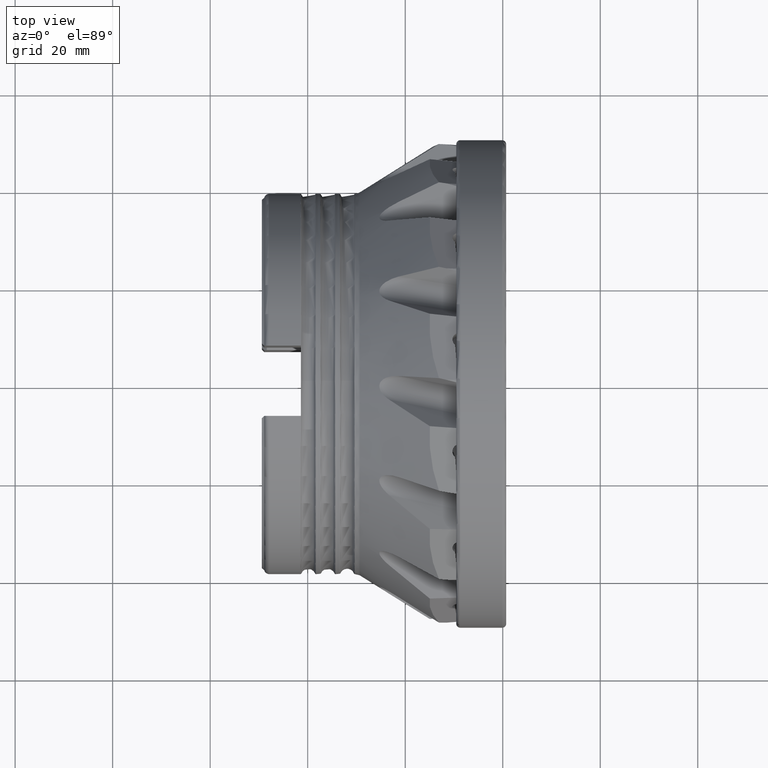
[diagram: clean part render]
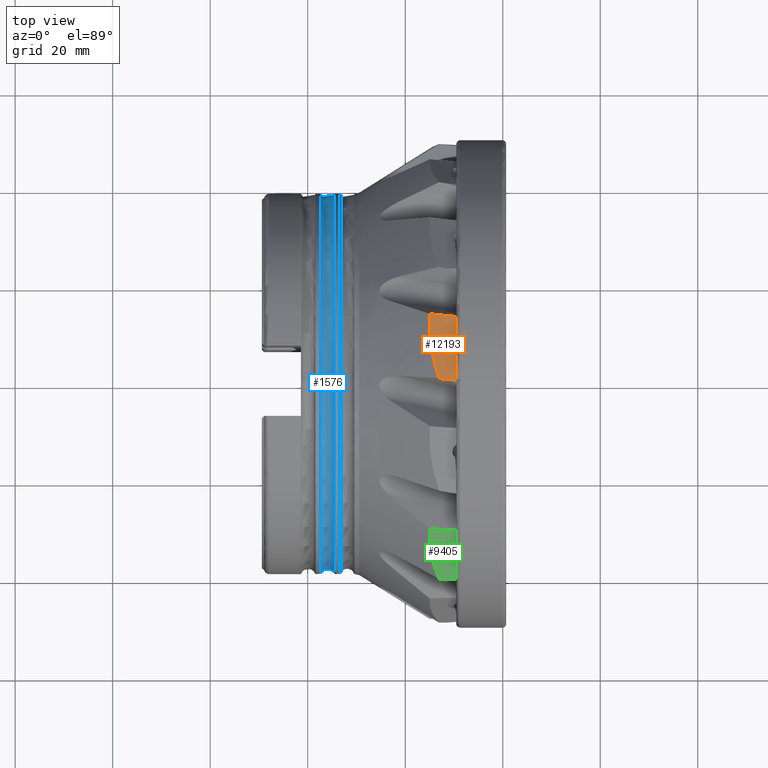
[diagram: same view with three faces highlighted in distinct colors, each labeled with its STEP entity id]
A machine part, top view with three faces highlighted in distinct colors.
Their STEP definitions:

[orange] entity #12193 — the highlighted planar face has unit normal (-0.075, -0.2386, -0.9682).
#284 = CARTESIAN_POINT ( 'NONE',  ( -9.493861966332499200, 9.565074916318346600, 46.89661093486189700 ) ) ;
#366 = LINE ( 'NONE', #6160, #1443 ) ;
#410 = EDGE_CURVE ( 'NONE', #670, #3139, #5415, .T. ) ;
#546 = CARTESIAN_POINT ( 'NONE',  ( -8.824743376138336300, 8.250470291007802700, 47.16881488664934400 ) ) ;
#670 = VERTEX_POINT ( 'NONE', #11429 ) ;
#878 = CARTESIAN_POINT ( 'NONE',  ( -14.84313381388667900, 7.996017641794465700, 47.69759997523081600 ) ) ;
#911 = EDGE_CURVE ( 'NONE', #3139, #5652, #11767, .T. ) ;
#932 = ORIENTED_EDGE ( 'NONE', *, *, #8702, .T. ) ;
#1191 = DIRECTION ( 'NONE',  ( 0.9755127854024282500, -0.2188799881042607400, -0.02159528476021882100 ) ) ;
#1443 = VECTOR ( 'NONE', #1191, 999.9999999999998900 ) ;
#1535 = CARTESIAN_POINT ( 'NONE',  ( -9.521634869937338800, 1.578536614008951800, 48.86726658069592600 ) ) ;
#1566 = AXIS2_PLACEMENT_3D ( 'NONE', #2686, #11645, #5686 ) ;
#1570 = DIRECTION ( 'NONE',  ( 0.0000000000000000000, 0.9709418174260539000, -0.2393156642875499700 ) ) ;
#1659 = CARTESIAN_POINT ( 'NONE',  ( -11.56605157200817400, -3.382318612024606100E-013, 49.41466189609929000 ) ) ;
#1782 = ORIENTED_EDGE ( 'NONE', *, *, #911, .F. ) ;
#1880 = CARTESIAN_POINT ( 'NONE',  ( -13.81637240197975700, 2.492366759669711200, 48.97461499944779500 ) ) ;
#2238 = CARTESIAN_POINT ( 'NONE',  ( -9.529555263469744000, 0.3690522359348623000, 49.16599106609749000 ) ) ;
#2260 = CARTESIAN_POINT ( 'NONE',  ( -9.527000476006922000, -3.366713401751077900E-013, 49.25675642812401400 ) ) ;
#2686 = CARTESIAN_POINT ( 'NONE',  ( 3.522238160756996800, 11.21056697688779900, 45.48305814966299500 ) ) ;
#2861 = CARTESIAN_POINT ( 'NONE',  ( -14.99053346857570700, 13.05510449688492400, 46.46206178522295700 ) ) ;
#3139 = VERTEX_POINT ( 'NONE', #7749 ) ;
#3342 = VECTOR ( 'NONE', #11103, 1000.000000000000000 ) ;
#3385 = AXIS2_PLACEMENT_3D ( 'NONE', #546, #7518, #1570 ) ;
#3455 = ORIENTED_EDGE ( 'NONE', *, *, #8497, .T. ) ;
#3809 = CARTESIAN_POINT ( 'NONE',  ( -9.492439345661626500, 11.88156660256816200, 46.32553684561631300 ) ) ;
#3965 = LINE ( 'NONE', #5155, #3342 ) ;
#4020 = ORIENTED_EDGE ( 'NONE', *, *, #8549, .T. ) ;
#4185 = B_SPLINE_CURVE_WITH_KNOTS ( 'NONE', 3,
 ( #10741, #3809, #11756, #5798 ),
 .UNSPECIFIED., .F., .F.,
 ( 4, 4 ),
 ( 0.0005913503118668593000, 0.004170112217713586000 ),
 .UNSPECIFIED. ) ;
#4262 = EDGE_CURVE ( 'NONE', #11192, #9511, #4185, .T. ) ;
#4563 = VERTEX_POINT ( 'NONE', #10727 ) ;
#4616 = CARTESIAN_POINT ( 'NONE',  ( 3.734943233848599900, -3.295974604355933500E-013, 48.22974271970189600 ) ) ;
#4689 = PLANE ( 'NONE',  #1566 ) ;
#4882 = VECTOR ( 'NONE', #5814, 1000.000000000000100 ) ;
#4896 = LINE ( 'NONE', #11769, #4882 ) ;
#4947 = EDGE_LOOP ( 'NONE', ( #10029, #11469, #4020, #932, #12090, #1782, #7156, #3455, #7442 ) ) ;
#5155 = CARTESIAN_POINT ( 'NONE',  ( 3.564277126467818100, 11.66728847136491800, 45.36723088634331400 ) ) ;
#5253 = CARTESIAN_POINT ( 'NONE',  ( -9.527000476006922000, -3.366713401751077900E-013, 49.25675642812401400 ) ) ;
#5271 = CARTESIAN_POINT ( 'NONE',  ( -13.08113840792328400, 0.3399465323100677700, 49.44820192975917200 ) ) ;
#5297 = B_SPLINE_CURVE_WITH_KNOTS ( 'NONE', 3,
 ( #10808, #2861, #11804, #5856, #12755, #6843, #878, #7848, #1880, #8825 ),
 .UNSPECIFIED., .F., .F.,
 ( 4, 2, 2, 2, 4 ),
 ( 0.009805191087140950300, 0.01152719253080929600, 0.01324919397447764000, 0.01669319686181433900, 0.02358120263648773300 ),
 .UNSPECIFIED. ) ;
#5415 = B_SPLINE_CURVE_WITH_KNOTS ( 'NONE', 3,
 ( #7649, #11661, #1535, #7525 ),
 .UNSPECIFIED., .F., .F.,
 ( 4, 4 ),
 ( 0.009904539909441208500, 0.01364207444920156500 ),
 .UNSPECIFIED. ) ;
#5607 = DIRECTION ( 'NONE',  ( 0.9970148915944125900, 5.318046581967230700E-016, -0.07720949383969394300 ) ) ;
#5652 = VERTEX_POINT ( 'NONE', #2260 ) ;
#5662 = VERTEX_POINT ( 'NONE', #5271 ) ;
#5686 = DIRECTION ( 'NONE',  ( 0.9971851335251157300, -0.01794358381787752900, -0.07279998129304639200 ) ) ;
#5769 = EDGE_CURVE ( 'NONE', #7956, #5652, #12791, .T. ) ;
#5798 = CARTESIAN_POINT ( 'NONE',  ( -9.493861966332499200, 9.565074916318346600, 46.89661093486189700 ) ) ;
#5814 = DIRECTION ( 'NONE',  ( -0.08711846429042967300, 0.9687969761648263000, -0.2320404967964991300 ) ) ;
#5856 = CARTESIAN_POINT ( 'NONE',  ( -15.02604108072771400, 11.36528276627376700, 46.88131516730182800 ) ) ;
#6160 = CARTESIAN_POINT ( 'NONE',  ( 0.4814873126665858400, -2.703157977243459100, 49.14796110368779800 ) ) ;
#6685 = CIRCLE ( 'NONE', #3385, 1.500000000000000900 ) ;
#6843 = CARTESIAN_POINT ( 'NONE',  ( -14.94848232178144100, 9.111859537550991200, 47.43072790753981100 ) ) ;
#7031 = VERTEX_POINT ( 'NONE', #10743 ) ;
#7156 = ORIENTED_EDGE ( 'NONE', *, *, #410, .F. ) ;
#7442 = ORIENTED_EDGE ( 'NONE', *, *, #10054, .T. ) ;
#7518 = DIRECTION ( 'NONE',  ( -0.07497872682632790400, -0.2386420226472339700, -0.9682087458551178500 ) ) ;
#7525 = CARTESIAN_POINT ( 'NONE',  ( -9.529555263469744000, 0.3690522359348623000, 49.16599106609749000 ) ) ;
#7649 = CARTESIAN_POINT ( 'NONE',  ( -9.509537082797226800, 3.997582196343370900, 48.27008853433294200 ) ) ;
#7709 = EDGE_CURVE ( 'NONE', #11192, #7031, #3965, .T. ) ;
#7749 = CARTESIAN_POINT ( 'NONE',  ( -9.529555263469744000, 0.3690522359348623000, 49.16599106609749000 ) ) ;
#7848 = CARTESIAN_POINT ( 'NONE',  ( -14.36043400706242900, 4.673675331503849500, 48.47910321524848600 ) ) ;
#7956 = VERTEX_POINT ( 'NONE', #1659 ) ;
#8497 = EDGE_CURVE ( 'NONE', #670, #4563, #4896, .T. ) ;
#8549 = EDGE_CURVE ( 'NONE', #7031, #5662, #5297, .T. ) ;
#8702 = EDGE_CURVE ( 'NONE', #5662, #7956, #366, .T. ) ;
#8825 = CARTESIAN_POINT ( 'NONE',  ( -13.08113840792328400, 0.3399465323100677700, 49.44820192975917200 ) ) ;
#9227 = CARTESIAN_POINT ( 'NONE',  ( -9.529554695824892000, 0.1231623573212059800, 49.22659743396058500 ) ) ;
#9511 = VERTEX_POINT ( 'NONE', #284 ) ;
#10029 = ORIENTED_EDGE ( 'NONE', *, *, #4262, .F. ) ;
#10054 = EDGE_CURVE ( 'NONE', #4563, #9511, #6685, .T. ) ;
#10727 = CARTESIAN_POINT ( 'NONE',  ( -9.793776456669011300, 7.158453409545151300, 47.51301543783691300 ) ) ;
#10741 = CARTESIAN_POINT ( 'NONE',  ( -9.493561608285721900, 13.03985008032317700, 46.04013251799525400 ) ) ;
#10743 = CARTESIAN_POINT ( 'NONE',  ( -14.95412993031776100, 13.61383223726059400, 46.32152865163433100 ) ) ;
#10808 = CARTESIAN_POINT ( 'NONE',  ( -14.95412993031776100, 13.61383223726059400, 46.32152865163433100 ) ) ;
#10976 = CARTESIAN_POINT ( 'NONE',  ( -9.493561608285721900, 13.03985008032317700, 46.04013251799525400 ) ) ;
#11103 = DIRECTION ( 'NONE',  ( -0.9932173659157969000, 0.1044010462603099000, 0.05118286415431035800 ) ) ;
#11189 = CARTESIAN_POINT ( 'NONE',  ( -9.530359928307911200, 0.2461758223624449200, 49.19633969571010100 ) ) ;
#11192 = VERTEX_POINT ( 'NONE', #10976 ) ;
#11429 = CARTESIAN_POINT ( 'NONE',  ( -9.509537082797226800, 3.997582196343370900, 48.27008853433294200 ) ) ;
#11469 = ORIENTED_EDGE ( 'NONE', *, *, #7709, .T. ) ;
#11645 = DIRECTION ( 'NONE',  ( -0.07497872682632789100, -0.2386420226472339700, -0.9682087458551177400 ) ) ;
#11661 = CARTESIAN_POINT ( 'NONE',  ( -9.514943241256313300, 2.788046212846928100, 48.56863103529867900 ) ) ;
#11756 = CARTESIAN_POINT ( 'NONE',  ( -9.492539752634119300, 10.72330822047011100, 46.61102967205719200 ) ) ;
#11767 = B_SPLINE_CURVE_WITH_KNOTS ( 'NONE', 3,
 ( #2238, #11189, #9227, #5253 ),
 .UNSPECIFIED., .F., .F.,
 ( 4, 4 ),
 ( 0.003973035490304902300, 0.004359295373884256000 ),
 .UNSPECIFIED. ) ;
#11769 = CARTESIAN_POINT ( 'NONE',  ( -9.793776456669011300, 7.158453409545151300, 47.51301543783691300 ) ) ;
#11804 = CARTESIAN_POINT ( 'NONE',  ( -15.01236547457735200, 12.49368034016518600, 46.60213109663669000 ) ) ;
#11876 = FACE_OUTER_BOUND ( 'NONE', #4947, .T. ) ;
#12090 = ORIENTED_EDGE ( 'NONE', *, *, #5769, .T. ) ;
#12193 = ADVANCED_FACE ( 'NONE', ( #11876 ), #4689, .F. ) ;
#12522 = VECTOR ( 'NONE', #5607, 1000.000000000000100 ) ;
#12755 = CARTESIAN_POINT ( 'NONE',  ( -15.01776938708236200, 10.79903136447373200, 47.02024303731953800 ) ) ;
#12791 = LINE ( 'NONE', #4616, #12522 ) ;

[blue] entity #1576 — the highlighted toroidal blend (fillet) surface has major radius 39.4 mm and minor (blend) radius 1.5 mm.
#116 = EDGE_LOOP ( 'NONE', ( #4821 ) ) ;
#644 = CIRCLE ( 'NONE', #7794, 38.87058823529411500 ) ;
#673 = CIRCLE ( 'NONE', #8897, 38.87058823529411500 ) ;
#727 = DIRECTION ( 'NONE',  ( -1.000000000000000000, -0.0000000000000000000, -0.0000000000000000000 ) ) ;
#1307 = DIRECTION ( 'NONE',  ( 1.000000000000000000, 0.0000000000000000000, 0.0000000000000000000 ) ) ;
#1576 = ADVANCED_FACE ( 'NONE', ( #7591, #5712 ), #12243, .F. ) ;
#1744 = CARTESIAN_POINT ( 'NONE',  ( -35.89999999999999900, 0.0000000000000000000, 0.0000000000000000000 ) ) ;
#2769 = DIRECTION ( 'NONE',  ( 0.0000000000000000000, 0.0000000000000000000, 1.000000000000000000 ) ) ;
#4330 = DIRECTION ( 'NONE',  ( -1.000000000000000000, -0.0000000000000000000, -0.0000000000000000000 ) ) ;
#4821 = ORIENTED_EDGE ( 'NONE', *, *, #8800, .T. ) ;
#5555 = VERTEX_POINT ( 'NONE', #8594 ) ;
#5667 = EDGE_CURVE ( 'NONE', #10191, #10191, #673, .T. ) ;
#5712 = FACE_OUTER_BOUND ( 'NONE', #12850, .T. ) ;
#7248 = CARTESIAN_POINT ( 'NONE',  ( -37.30346826946353600, 0.0000000000000000000, 0.0000000000000000000 ) ) ;
#7543 = ORIENTED_EDGE ( 'NONE', *, *, #5667, .T. ) ;
#7591 = FACE_OUTER_BOUND ( 'NONE', #116, .T. ) ;
#7794 = AXIS2_PLACEMENT_3D ( 'NONE', #10264, #4330, #11291 ) ;
#8250 = DIRECTION ( 'NONE',  ( 0.0000000000000000000, 0.0000000000000000000, -1.000000000000000000 ) ) ;
#8594 = CARTESIAN_POINT ( 'NONE',  ( -34.49653173053646800, 0.0000000000000000000, 38.87058823529411500 ) ) ;
#8800 = EDGE_CURVE ( 'NONE', #5555, #5555, #644, .T. ) ;
#8897 = AXIS2_PLACEMENT_3D ( 'NONE', #7248, #1307, #8250 ) ;
#9502 = CARTESIAN_POINT ( 'NONE',  ( -37.30346826946353600, 0.0000000000000000000, -38.87058823529411500 ) ) ;
#10191 = VERTEX_POINT ( 'NONE', #9502 ) ;
#10264 = CARTESIAN_POINT ( 'NONE',  ( -34.49653173053646800, 0.0000000000000000000, 0.0000000000000000000 ) ) ;
#10352 = AXIS2_PLACEMENT_3D ( 'NONE', #1744, #727, #2769 ) ;
#11291 = DIRECTION ( 'NONE',  ( 0.0000000000000000000, 0.0000000000000000000, 1.000000000000000000 ) ) ;
#12243 = TOROIDAL_SURFACE ( 'NONE', #10352, 39.39999999999999100, 1.500000000000004200 ) ;
#12850 = EDGE_LOOP ( 'NONE', ( #7543 ) ) ;

[green] entity #9405 — the highlighted planar face has unit normal (-0.075, 0.6613, -0.7464).
#77 = CARTESIAN_POINT ( 'NONE',  ( -9.509537082797223200, -37.45461855111171400, 30.71048126812050300 ) ) ;
#113 = CARTESIAN_POINT ( 'NONE',  ( 3.522238160756996800, -31.06349513823727900, 35.06343765784555400 ) ) ;
#325 = B_SPLINE_CURVE_WITH_KNOTS ( 'NONE', 3,
 ( #9299, #10285, #4351, #11315, #5366, #12279, #6350, #364, #7338, #1394 ),
 .UNSPECIFIED., .F., .F.,
 ( 4, 2, 2, 2, 4 ),
 ( 0.009805191087141803700, 0.01152719253081014600, 0.01324919397447848700, 0.01669319686181518600, 0.02358120263648859300 ),
 .UNSPECIFIED. ) ;
#364 = CARTESIAN_POINT ( 'NONE',  ( -14.36043400706243000, -37.24256958564846100, 31.38562888197645500 ) ) ;
#421 = VERTEX_POINT ( 'NONE', #4498 ) ;
#799 = B_SPLINE_CURVE_WITH_KNOTS ( 'NONE', 3,
 ( #7316, #1368, #10312, #4372 ),
 .UNSPECIFIED., .F., .F.,
 ( 4, 4 ),
 ( 0.009439679676389093500, 0.01317721562035631200 ),
 .UNSPECIFIED. ) ;
#866 = VECTOR ( 'NONE', #11776, 1000.000000000000100 ) ;
#1020 = LINE ( 'NONE', #10766, #866 ) ;
#1088 = CARTESIAN_POINT ( 'NONE',  ( -8.824743376138336300, -34.13237230876272600, 33.58494481772751800 ) ) ;
#1368 = CARTESIAN_POINT ( 'NONE',  ( -9.514943242022642500, -38.38740909704234400, 29.88464402162041700 ) ) ;
#1394 = CARTESIAN_POINT ( 'NONE',  ( -13.08113840792328400, -40.50196074486456900, 28.36955081689728100 ) ) ;
#1419 = CARTESIAN_POINT ( 'NONE',  ( -11.56605157200818100, -40.66746947907999800, 28.07072739481296300 ) ) ;
#1486 = AXIS2_PLACEMENT_3D ( 'NONE', #113, #10076, #4156 ) ;
#1912 = LINE ( 'NONE', #9221, #3660 ) ;
#1999 = ORIENTED_EDGE ( 'NONE', *, *, #7393, .F. ) ;
#2097 = DIRECTION ( 'NONE',  ( 0.0000000000000000000, 0.7485107481710962000, 0.6631226582408006300 ) ) ;
#2216 = EDGE_CURVE ( 'NONE', #4704, #10175, #12395, .T. ) ;
#2283 = AXIS2_PLACEMENT_3D ( 'NONE', #1088, #8047, #2097 ) ;
#2364 = ORIENTED_EDGE ( 'NONE', *, *, #2216, .T. ) ;
#2918 = EDGE_CURVE ( 'NONE', #4818, #7993, #4081, .T. ) ;
#2948 = VERTEX_POINT ( 'NONE', #1419 ) ;
#3004 = CARTESIAN_POINT ( 'NONE',  ( -14.95412993031776100, -30.38833256192599600, 37.51759172593897100 ) ) ;
#3280 = CARTESIAN_POINT ( 'NONE',  ( -9.493561608285718400, -30.48280711262503200, 36.88536244808182800 ) ) ;
#3343 = CARTESIAN_POINT ( 'NONE',  ( 3.564277126467818100, -30.70872378920774900, 35.37351469400479700 ) ) ;
#3424 = EDGE_CURVE ( 'NONE', #4818, #10175, #9519, .T. ) ;
#3660 = VECTOR ( 'NONE', #4282, 1000.000000000000000 ) ;
#4081 = LINE ( 'NONE', #3343, #10254 ) ;
#4156 = DIRECTION ( 'NONE',  ( 0.9971851335251157300, 0.04972009264458545500, -0.05612238291369087800 ) ) ;
#4237 = CARTESIAN_POINT ( 'NONE',  ( -9.492439345501273000, -31.37567040751641700, 36.09424185781168900 ) ) ;
#4282 = DIRECTION ( 'NONE',  ( 0.9755127854024281400, -0.1065654340699255700, -0.1924022187447031200 ) ) ;
#4288 = CARTESIAN_POINT ( 'NONE',  ( -9.493861966332492100, -33.16157230468051900, 34.51221374545591700 ) ) ;
#4338 = DIRECTION ( 'NONE',  ( -0.9932173659157969000, 0.01718388249310620600, 0.1149955574174458400 ) ) ;
#4351 = CARTESIAN_POINT ( 'NONE',  ( -15.01236547457735400, -31.25558265061718200, 36.75512514413166800 ) ) ;
#4372 = CARTESIAN_POINT ( 'NONE',  ( -9.529555263469738700, -40.25317183313303800, 28.23319029859521800 ) ) ;
#4498 = CARTESIAN_POINT ( 'NONE',  ( -13.08113840792328400, -40.50196074486456900, 28.36955081689728100 ) ) ;
#4524 = EDGE_CURVE ( 'NONE', #7634, #4704, #4729, .T. ) ;
#4704 = VERTEX_POINT ( 'NONE', #10986 ) ;
#4729 = LINE ( 'NONE', #4756, #5804 ) ;
#4756 = CARTESIAN_POINT ( 'NONE',  ( -9.793776456669011300, -35.03598010221602300, 32.88176074193533800 ) ) ;
#4818 = VERTEX_POINT ( 'NONE', #7205 ) ;
#5064 = B_SPLINE_CURVE_WITH_KNOTS ( 'NONE', 3,
 ( #10627, #8627, #12595, #6668 ),
 .UNSPECIFIED., .F., .F.,
 ( 4, 4 ),
 ( 0.003973199445798502500, 0.004359515351873377200 ),
 .UNSPECIFIED. ) ;
#5200 = CARTESIAN_POINT ( 'NONE',  ( -9.492539752822981600, -32.26859215196807900, 35.30319230700148800 ) ) ;
#5366 = CARTESIAN_POINT ( 'NONE',  ( -15.01776938708235900, -32.56235237311102500, 35.59797103247365200 ) ) ;
#5537 = CARTESIAN_POINT ( 'NONE',  ( -9.529555263469738700, -40.25317183313303800, 28.23319029859521800 ) ) ;
#5721 = EDGE_CURVE ( 'NONE', #7993, #421, #325, .T. ) ;
#5804 = VECTOR ( 'NONE', #11701, 1000.000000000000100 ) ;
#5998 = ORIENTED_EDGE ( 'NONE', *, *, #4524, .T. ) ;
#6067 = ORIENTED_EDGE ( 'NONE', *, *, #3424, .F. ) ;
#6222 = EDGE_LOOP ( 'NONE', ( #6067, #12746, #7502, #11955, #10069, #1999, #8828, #5998, #2364 ) ) ;
#6350 = CARTESIAN_POINT ( 'NONE',  ( -14.84313381388667700, -34.71209948492087000, 33.67591856021127900 ) ) ;
#6668 = CARTESIAN_POINT ( 'NONE',  ( -9.527000476006890000, -40.53751582659995700, 27.98102686514012700 ) ) ;
#6801 = FACE_OUTER_BOUND ( 'NONE', #6222, .T. ) ;
#7205 = CARTESIAN_POINT ( 'NONE',  ( -9.493561608285718400, -30.48280711262503200, 36.88536244808182800 ) ) ;
#7208 = EDGE_CURVE ( 'NONE', #421, #2948, #1912, .T. ) ;
#7316 = CARTESIAN_POINT ( 'NONE',  ( -9.509537082797223200, -37.45461855111171400, 30.71048126812050300 ) ) ;
#7338 = CARTESIAN_POINT ( 'NONE',  ( -13.81637240197977200, -38.88949229080616700, 29.87192989701492300 ) ) ;
#7393 = EDGE_CURVE ( 'NONE', #10059, #9861, #5064, .T. ) ;
#7502 = ORIENTED_EDGE ( 'NONE', *, *, #5721, .T. ) ;
#7634 = VERTEX_POINT ( 'NONE', #77 ) ;
#7993 = VERTEX_POINT ( 'NONE', #3004 ) ;
#8047 = DIRECTION ( 'NONE',  ( -0.07497872682632790400, 0.6612560565013835300, -0.7464037903599781700 ) ) ;
#8627 = CARTESIAN_POINT ( 'NONE',  ( -9.530359937224307700, -40.34795107463761400, 28.14930404979725900 ) ) ;
#8828 = ORIENTED_EDGE ( 'NONE', *, *, #12484, .F. ) ;
#8900 = CARTESIAN_POINT ( 'NONE',  ( -9.527000476006890000, -40.53751582659995700, 27.98102686514012700 ) ) ;
#9221 = CARTESIAN_POINT ( 'NONE',  ( 0.4814873126665858400, -41.98354778162120500, 25.69456867448591100 ) ) ;
#9299 = CARTESIAN_POINT ( 'NONE',  ( -14.95412993031776100, -30.38833256192599600, 37.51759172593897100 ) ) ;
#9405 = ADVANCED_FACE ( 'NONE', ( #6801 ), #12043, .F. ) ;
#9519 = B_SPLINE_CURVE_WITH_KNOTS ( 'NONE', 3,
 ( #3280, #4237, #5200, #4288 ),
 .UNSPECIFIED., .F., .F.,
 ( 4, 4 ),
 ( 0.0001264913074025763500, 0.003705251927061671000 ),
 .UNSPECIFIED. ) ;
#9728 = CARTESIAN_POINT ( 'NONE',  ( -9.493861966332492100, -33.16157230468051900, 34.51221374545591700 ) ) ;
#9861 = VERTEX_POINT ( 'NONE', #8900 ) ;
#10059 = VERTEX_POINT ( 'NONE', #5537 ) ;
#10069 = ORIENTED_EDGE ( 'NONE', *, *, #11060, .T. ) ;
#10076 = DIRECTION ( 'NONE',  ( -0.07497872682632790400, 0.6612560565013834200, -0.7464037903599781700 ) ) ;
#10175 = VERTEX_POINT ( 'NONE', #9728 ) ;
#10254 = VECTOR ( 'NONE', #4338, 1000.000000000000100 ) ;
#10285 = CARTESIAN_POINT ( 'NONE',  ( -14.99053346857571400, -30.82138259582108500, 37.13759972912193800 ) ) ;
#10312 = CARTESIAN_POINT ( 'NONE',  ( -9.521634871043312700, -39.32026109466291800, 29.05888146336169700 ) ) ;
#10627 = CARTESIAN_POINT ( 'NONE',  ( -9.529555263469738700, -40.25317183313303800, 28.23319029859521800 ) ) ;
#10766 = CARTESIAN_POINT ( 'NONE',  ( 3.734943233848599900, -39.69230011451693900, 27.39761658297589600 ) ) ;
#10986 = CARTESIAN_POINT ( 'NONE',  ( -9.793776456669011300, -35.03598010221602300, 32.88176074193533800 ) ) ;
#11060 = EDGE_CURVE ( 'NONE', #2948, #9861, #1020, .T. ) ;
#11315 = CARTESIAN_POINT ( 'NONE',  ( -15.02604108072770800, -32.12634951841376800, 35.98506677489924500 ) ) ;
#11701 = DIRECTION ( 'NONE',  ( -0.08711846429042967300, 0.7413049939964476700, 0.6654902546661399800 ) ) ;
#11776 = DIRECTION ( 'NONE',  ( 0.9970148915944124800, 0.06354216772388414400, -0.04385999156328589100 ) ) ;
#11955 = ORIENTED_EDGE ( 'NONE', *, *, #7208, .T. ) ;
#12043 = PLANE ( 'NONE',  #1486 ) ;
#12279 = CARTESIAN_POINT ( 'NONE',  ( -14.94848232178144800, -33.85859763504857500, 34.44263782376457100 ) ) ;
#12395 = CIRCLE ( 'NONE', #2283, 1.500000000000002900 ) ;
#12484 = EDGE_CURVE ( 'NONE', #7634, #10059, #799, .T. ) ;
#12595 = CARTESIAN_POINT ( 'NONE',  ( -9.529554666730149400, -40.44273234734638600, 28.06525427729043500 ) ) ;
#12746 = ORIENTED_EDGE ( 'NONE', *, *, #2918, .T. ) ;